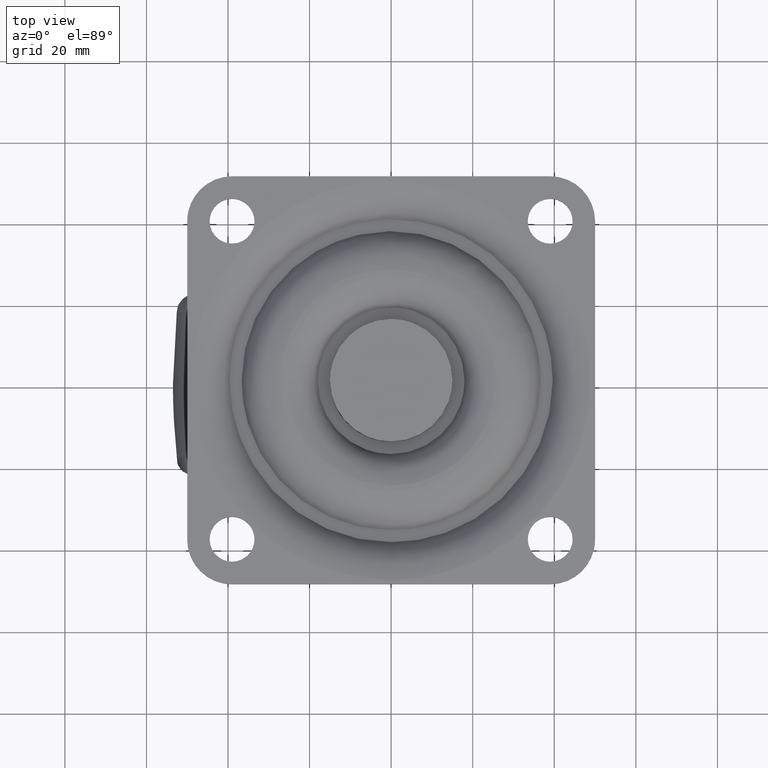
[diagram: clean part render]
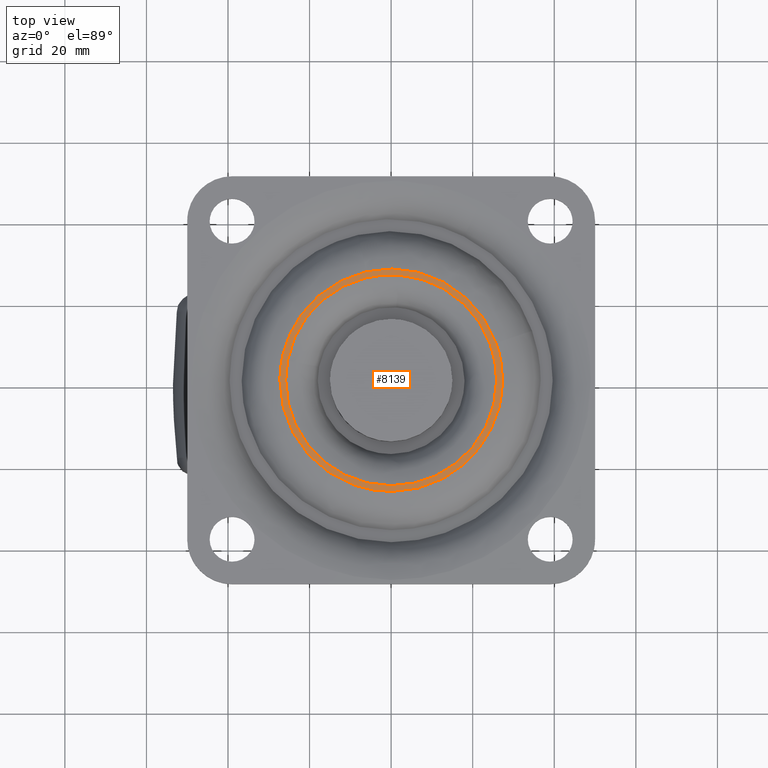
[diagram: same view with one face highlighted and labeled with its STEP entity id]
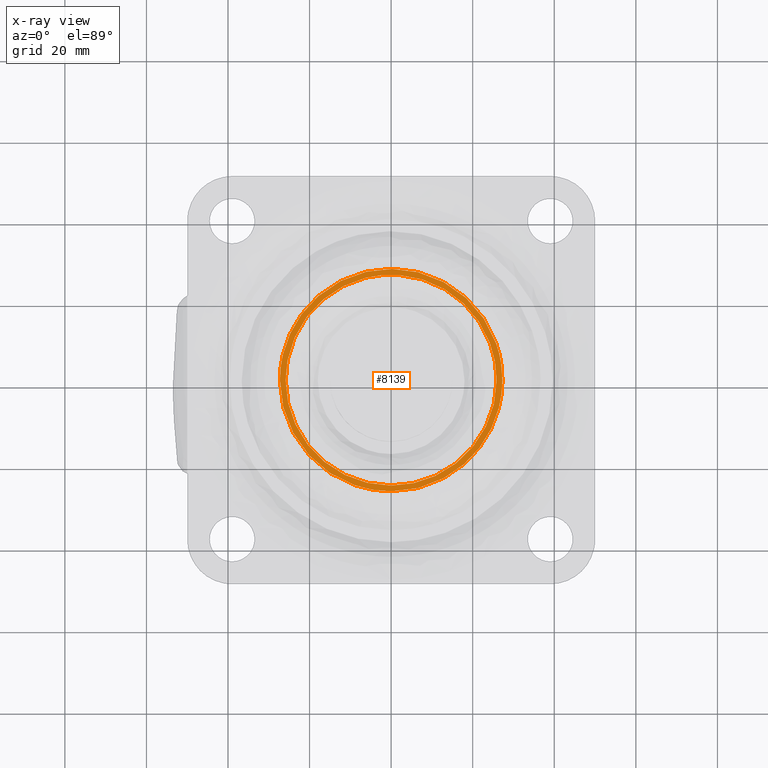
[diagram: x-ray of the same camera — body ghosted, the highlighted face saturated]
A machine part, top view. The second image highlights one B-rep face of the part: STEP entity #8139.
The next image is the same camera in x-ray: the body ghosted, the highlighted face saturated — about 0% of this face is hidden behind the body in this view.
In plain terms, the highlighted face is a freeform B-spline surface patch.
Its self-contained STEP definition (entity closure, byte-faithful):
#7069=CARTESIAN_POINT('',(-25.400098982817980,4.845327922967750,-1.243973E-015));
#7070=VERTEX_POINT('',#7069);
#7084=CARTESIAN_POINT('',(-25.858117322750850,0.0,0.0));
#7085=VERTEX_POINT('',#7084);
#7086=CARTESIAN_POINT('',(-25.858117322750850,0.0,0.0));
#7087=CARTESIAN_POINT('',(-25.858201084295288,1.624719688980686,2.274955E-019));
#7088=CARTESIAN_POINT('',(-25.704679126419350,3.249407901081459,-4.167365E-016));
#7089=CARTESIAN_POINT('',(-25.400098982817980,4.845327922967750,-1.243973E-015));
#7090=B_SPLINE_CURVE_WITH_KNOTS('',3,(#7086,#7087,#7088,#7089),.UNSPECIFIED.,.F.,.U.,(4,4),(9.122507E-010,4.874147237430577),.UNSPECIFIED.);
#7091=EDGE_CURVE('',#7085,#7070,#7090,.T.);
#7093=CARTESIAN_POINT('',(-0.000002148810196,-25.858116822750802,0.0));
#7094=VERTEX_POINT('',#7093);
#7095=CARTESIAN_POINT('',(-0.000002148810196,-25.858116822750802,0.0));
#7096=CARTESIAN_POINT('',(-1.798211317879556,-25.858425318687999,0.0));
#7097=CARTESIAN_POINT('',(-4.759791574796266,-25.547843667341400,0.0));
#7098=CARTESIAN_POINT('',(-8.686834166784946,-24.435062399273331,0.0));
#7099=CARTESIAN_POINT('',(-12.043484420835121,-22.984016498825120,0.0));
#7100=CARTESIAN_POINT('',(-14.979508253382280,-21.174890472137271,0.0));
#7101=CARTESIAN_POINT('',(-17.968537644953770,-18.721888261588159,0.0));
#7102=CARTESIAN_POINT('',(-20.437246285888289,-16.014861674558659,0.0));
#7103=CARTESIAN_POINT('',(-22.625623042078590,-12.695697035323130,0.0));
#7104=CARTESIAN_POINT('',(-24.031372769388291,-9.723415541780781,0.0));
#7105=CARTESIAN_POINT('',(-25.094429569526550,-6.505545773563933,0.0));
#7106=CARTESIAN_POINT('',(-25.715184684906479,-3.384817157196768,0.0));
#7107=CARTESIAN_POINT('',(-25.858137575765859,-1.057752724912447,0.0));
#7108=CARTESIAN_POINT('',(-25.858117322750850,0.0,0.0));
#7109=B_SPLINE_CURVE_WITH_KNOTS('',3,(#7095,#7096,#7097,#7098,#7099,#7100,#7101,#7102,#7103,#7104,#7105,#7106,#7107,#7108),.UNSPECIFIED.,.F.,.U.,(4,1,1,1,1,1,1,1,1,1,1,4),(0.000000065593696,5.394549439185973,8.885161983043108,12.217112870780831,16.342388060420081,19.198310688530540,23.799519605514110,27.290134279184240,31.098080509746151,33.636712321058177,37.444630518089163,40.617897711306703),.UNSPECIFIED.);
#7110=EDGE_CURVE('',#7094,#7085,#7109,.T.);
#7112=CARTESIAN_POINT('',(25.858116322750849,0.0,0.0));
#7113=VERTEX_POINT('',#7112);
#7114=CARTESIAN_POINT('',(25.858116322750849,0.0,0.0));
#7115=CARTESIAN_POINT('',(25.858506939196189,-2.009776261509606,0.0));
#7116=CARTESIAN_POINT('',(25.517318873986060,-4.918408411899305,0.0));
#7117=CARTESIAN_POINT('',(24.488493565173322,-8.424850472638996,0.0));
#7118=CARTESIAN_POINT('',(23.309279776363919,-11.374045496096770,0.0));
#7119=CARTESIAN_POINT('',(21.721455434004021,-14.197073688791029,0.0));
#7120=CARTESIAN_POINT('',(19.522848551337791,-17.050071555525701,0.0));
#7121=CARTESIAN_POINT('',(17.443661851383151,-19.167893302721620,0.0));
#7122=CARTESIAN_POINT('',(14.968920330500341,-21.161041693656390,0.0));
#7123=CARTESIAN_POINT('',(12.361388205406140,-22.789940367835690,0.0));
#7124=CARTESIAN_POINT('',(9.619790954468272,-24.055823710681601,0.0));
#7125=CARTESIAN_POINT('',(7.010620381257001,-24.935565276327189,0.0));
#7126=CARTESIAN_POINT('',(3.860758214782175,-25.653094050802061,0.0));
#7127=CARTESIAN_POINT('',(1.480856152208026,-25.858238999123660,0.0));
#7128=CARTESIAN_POINT('',(-0.000002148810196,-25.858116822750802,0.0));
#7129=B_SPLINE_CURVE_WITH_KNOTS('',3,(#7114,#7115,#7116,#7117,#7118,#7119,#7120,#7121,#7122,#7123,#7124,#7125,#7126,#7127,#7128),.UNSPECIFIED.,.F.,.U.,(4,1,1,1,1,1,1,1,1,1,1,1,4),(0.000000065448653,6.029212602821083,8.726495215954476,10.947795053516490,15.549040815393671,18.405025755352771,21.736885995648620,24.434194739507550,27.924799946758920,30.939416133351369,33.478039628080609,36.175345606647937,40.617899569902953),.UNSPECIFIED.);
#7130=EDGE_CURVE('',#7113,#7094,#7129,.T.);
#7132=CARTESIAN_POINT('',(1.880117323746604,25.789675502626039,-1.170020E-015));
#7133=VERTEX_POINT('',#7132);
#7134=CARTESIAN_POINT('',(1.880117323746604,25.789675502626039,-1.170020E-015));
#7135=CARTESIAN_POINT('',(3.590491210032199,25.665236229273319,-1.086561E-015));
#7136=CARTESIAN_POINT('',(6.386880981081955,25.178285010240181,-9.501098E-016));
#7137=CARTESIAN_POINT('',(10.538083323755840,23.728150604401449,-7.475496E-016));
#7138=CARTESIAN_POINT('',(13.842789075325671,21.960516790227668,-5.862946E-016));
#7139=CARTESIAN_POINT('',(16.551671474180051,19.929468230852660,-4.541132E-016));
#7140=CARTESIAN_POINT('',(18.622939528838749,18.005147317638020,-3.530445E-016));
#7141=CARTESIAN_POINT('',(20.554673151606771,15.801621036382180,-2.587845E-016));
#7142=CARTESIAN_POINT('',(22.421841735977491,13.036605626133881,-1.676749E-016));
#7143=CARTESIAN_POINT('',(23.968368720664149,9.910101261904780,-9.221129E-017));
#7144=CARTESIAN_POINT('',(24.984548794271369,6.891802284346162,-4.262622E-017));
#7145=CARTESIAN_POINT('',(25.682372126508628,3.581038183536501,-8.575536E-018));
#7146=CARTESIAN_POINT('',(25.858211412079331,1.361817555695374,4.639937E-021));
#7147=CARTESIAN_POINT('',(25.858116322750849,0.0,0.0));
#7148=B_SPLINE_CURVE_WITH_KNOTS('',3,(#7134,#7135,#7136,#7137,#7138,#7139,#7140,#7141,#7142,#7143,#7144,#7145,#7146,#7147),.UNSPECIFIED.,.F.,.U.,(4,1,1,1,1,1,1,1,1,1,1,4),(0.000000060213921,5.144630240536436,8.473519642187242,13.164241030772541,16.341829351366250,18.611531384101681,21.637749632728461,25.117939967540391,28.598144650649569,32.078343662313969,34.650672183128968,38.736111839524817),.UNSPECIFIED.);
#7149=EDGE_CURVE('',#7133,#7113,#7148,.T.);
#7199=CARTESIAN_POINT('',(-25.400098982817980,4.845327922967750,-1.243973E-015));
#7200=CARTESIAN_POINT('',(-25.051556313621109,6.674118897870211,-1.068800E-015));
#7201=CARTESIAN_POINT('',(-24.230465022307509,9.360207604674834,-8.371607E-016));
#7202=CARTESIAN_POINT('',(-22.558306238371220,12.747862487178780,-5.978394E-016));
#7203=CARTESIAN_POINT('',(-20.812540363398181,15.475743390968359,-4.382553E-016));
#7204=CARTESIAN_POINT('',(-18.335131288143089,18.399978101751980,-3.174621E-016));
#7205=CARTESIAN_POINT('',(-15.071015054575749,21.166552941200869,-2.795360E-016));
#7206=CARTESIAN_POINT('',(-11.047752870147381,23.537758158268229,-3.487182E-016));
#7207=CARTESIAN_POINT('',(-6.793875712544309,25.093883669991548,-5.279965E-016));
#7208=CARTESIAN_POINT('',(-2.338732113151684,25.865876758261930,-8.114819E-016));
#7209=CARTESIAN_POINT('',(0.463134837040516,25.893080058345181,-1.040914E-015));
#7210=CARTESIAN_POINT('',(1.880117323746604,25.789675502626039,-1.170020E-015));
#7211=B_SPLINE_CURVE_WITH_KNOTS('',3,(#7199,#7200,#7201,#7202,#7203,#7204,#7205,#7206,#7207,#7208,#7209,#7210),.UNSPECIFIED.,.F.,.U.,(4,1,1,1,1,1,1,1,1,4),(0.000000057971327,5.585037371145514,8.377557679936231,11.317062074690400,15.285397783553559,19.841543359152070,24.103846094274012,29.247967886888141,33.363283686801452,37.625523727834832),.UNSPECIFIED.);
#7212=EDGE_CURVE('',#7070,#7133,#7211,.T.);
#7516=CARTESIAN_POINT('',(-6.047745811863400,26.598627182407029,-1.539344E-015));
#7517=VERTEX_POINT('',#7516);
#7518=CARTESIAN_POINT('',(-27.277503502402400,0.0,0.0));
#7519=VERTEX_POINT('',#7518);
#7520=CARTESIAN_POINT('',(-6.047745811863400,26.598627182407029,-1.539344E-015));
#7521=CARTESIAN_POINT('',(-7.680878104883483,26.227489042994559,-1.420928E-015));
#7522=CARTESIAN_POINT('',(-10.147436823454459,25.421637939422769,-1.242080E-015));
#7523=CARTESIAN_POINT('',(-13.198810130011889,23.918259977122251,-1.020829E-015));
#7524=CARTESIAN_POINT('',(-16.052955979257760,22.158801295603720,-8.138783E-016));
#7525=CARTESIAN_POINT('',(-18.876605154882689,19.844059355611201,-6.091389E-016));
#7526=CARTESIAN_POINT('',(-21.271896470905059,17.161191611688970,-4.354593E-016));
#7527=CARTESIAN_POINT('',(-22.971670814217561,14.785146644405909,-3.122107E-016));
#7528=CARTESIAN_POINT('',(-24.728919991495822,11.760626061138320,-1.847947E-016));
#7529=CARTESIAN_POINT('',(-26.177533443940039,8.094108621381031,-7.975749E-017));
#7530=CARTESIAN_POINT('',(-27.090256080576939,3.875840693336861,-1.357708E-017));
#7531=CARTESIAN_POINT('',(-27.277567572262889,1.339809432935901,4.645628E-021));
#7532=CARTESIAN_POINT('',(-27.277503502402400,0.0,0.0));
#7533=B_SPLINE_CURVE_WITH_KNOTS('',3,(#7520,#7521,#7522,#7523,#7524,#7525,#7526,#7527,#7528,#7529,#7530,#7531,#7532),.UNSPECIFIED.,.F.,.U.,(4,1,1,1,1,1,1,1,1,1,4),(0.000000047887902,5.024277695300537,7.751740326886552,10.192116600974099,15.072842796131290,18.661584115403901,20.958421275363811,23.829442833849971,29.140828173021308,32.729599840593117,36.749022407743247),.UNSPECIFIED.);
#7534=EDGE_CURVE('',#7517,#7519,#7533,.T.);
#7621=CARTESIAN_POINT('',(25.722427647083979,9.078486292279923,-1.472977E-015));
#7622=VERTEX_POINT('',#7621);
#7635=CARTESIAN_POINT('',(27.277503502402400,0.0,0.0));
#7636=VERTEX_POINT('',#7635);
#7637=CARTESIAN_POINT('',(27.277503502402400,0.0,0.0));
#7638=CARTESIAN_POINT('',(27.277536146395470,1.205083581552374,3.092058E-020));
#7639=CARTESIAN_POINT('',(27.072776998115462,4.290100816529897,-1.939181E-016));
#7640=CARTESIAN_POINT('',(26.348418668289270,7.305809099893434,-8.800345E-016));
#7641=CARTESIAN_POINT('',(25.722427647083979,9.078486292279923,-1.472977E-015));
#7642=B_SPLINE_CURVE_WITH_KNOTS('',3,(#7637,#7638,#7639,#7640,#7641),.UNSPECIFIED.,.F.,.U.,(4,1,4),(2.907237E-009,3.615259229831285,9.255049736571774),.UNSPECIFIED.);
#7643=EDGE_CURVE('',#7636,#7622,#7642,.T.);
#7645=CARTESIAN_POINT('',(0.000001600492947,-27.277503502402361,0.0));
#7646=VERTEX_POINT('',#7645);
#7647=CARTESIAN_POINT('',(0.000001600492947,-27.277503502402361,0.0));
#7648=CARTESIAN_POINT('',(1.785328599398316,-27.277765253935819,0.0));
#7649=CARTESIAN_POINT('',(4.295806602036880,-27.030097678105822,0.0));
#7650=CARTESIAN_POINT('',(7.932866503990637,-26.154506469771391,0.0));
#7651=CARTESIAN_POINT('',(11.407838175299011,-24.911394246110721,0.0));
#7652=CARTESIAN_POINT('',(15.181987134437160,-22.818977395797418,0.0));
#7653=CARTESIAN_POINT('',(18.326568127617310,-20.301992064146791,0.0));
#7654=CARTESIAN_POINT('',(20.971326854987321,-17.574875017765379,0.0));
#7655=CARTESIAN_POINT('',(23.329373055025190,-14.375145740516430,0.0));
#7656=CARTESIAN_POINT('',(25.253901742258979,-10.580603688079290,0.0));
#7657=CARTESIAN_POINT('',(26.341340683863262,-7.288632627889756,0.0));
#7658=CARTESIAN_POINT('',(27.080420297087169,-3.849521217654023,0.0));
#7659=CARTESIAN_POINT('',(27.277660074534548,-1.562156069844526,0.0));
#7660=CARTESIAN_POINT('',(27.277503502402400,0.0,0.0));
#7661=B_SPLINE_CURVE_WITH_KNOTS('',3,(#7647,#7648,#7649,#7650,#7651,#7652,#7653,#7654,#7655,#7656,#7657,#7658,#7659,#7660),.UNSPECIFIED.,.F.,.U.,(4,1,1,1,1,1,1,1,1,1,1,4),(0.000000064080076,5.355909443330724,7.531766532053766,11.213987237723160,16.402573340433040,20.419536518575860,23.264819524937860,27.783898577558858,32.302974980909482,35.985179725219162,38.161036483770232,42.847468618781342),.UNSPECIFIED.);
#7662=EDGE_CURVE('',#7646,#7636,#7661,.T.);
#7664=CARTESIAN_POINT('',(-27.277503502402400,0.0,0.0));
#7665=CARTESIAN_POINT('',(-27.277551237141669,-1.227390707301140,0.0));
#7666=CARTESIAN_POINT('',(-27.115299886605069,-3.626379846918916,0.0));
#7667=CARTESIAN_POINT('',(-26.306966458357788,-7.626738182007187,0.0));
#7668=CARTESIAN_POINT('',(-24.784387795028330,-11.723082392237099,0.0));
#7669=CARTESIAN_POINT('',(-22.488916439919830,-15.633780162003870,0.0));
#7670=CARTESIAN_POINT('',(-19.969138489279079,-18.704060216080912,0.0));
#7671=CARTESIAN_POINT('',(-17.430059285923122,-21.062687434556270,0.0));
#7672=CARTESIAN_POINT('',(-14.679980772606770,-23.076251796106479,0.0));
#7673=CARTESIAN_POINT('',(-11.158115224762700,-25.028993485423928,0.0));
#7674=CARTESIAN_POINT('',(-7.671671607216789,-26.264407635181719,0.0));
#7675=CARTESIAN_POINT('',(-3.793723254905922,-27.085236648180739,0.0));
#7676=CARTESIAN_POINT('',(-1.562152626123372,-27.277643210159152,0.0));
#7677=CARTESIAN_POINT('',(0.000001600492947,-27.277503502402361,0.0));
#7678=B_SPLINE_CURVE_WITH_KNOTS('',3,(#7664,#7665,#7666,#7667,#7668,#7669,#7670,#7671,#7672,#7673,#7674,#7675,#7676,#7677),.UNSPECIFIED.,.F.,.U.,(4,1,1,1,1,1,1,1,1,1,1,4),(0.000000063949365,3.682171248763233,7.197029268340785,12.218226226254220,16.737294385670751,20.754261286164009,24.101664560120749,27.114404556836590,30.963989587754050,36.152570039355282,38.161038090211647,42.847470422912700),.UNSPECIFIED.);
#7679=EDGE_CURVE('',#7519,#7646,#7678,.T.);
#7707=CARTESIAN_POINT('',(25.722427647083979,9.078486292279923,-1.472977E-015));
#7708=CARTESIAN_POINT('',(25.034739000253332,11.028014460957159,-1.228920E-015));
#7709=CARTESIAN_POINT('',(23.645690665040998,13.880677268372430,-9.056021E-016));
#7710=CARTESIAN_POINT('',(21.247974851203939,17.194258805371721,-5.992945E-016));
#7711=CARTESIAN_POINT('',(19.160923666523789,19.493093140238351,-4.241961E-016));
#7712=CARTESIAN_POINT('',(16.986573699118878,21.410920706749010,-3.163716E-016));
#7713=CARTESIAN_POINT('',(14.408316756012630,23.231421999158830,-2.594290E-016));
#7714=CARTESIAN_POINT('',(11.728374246651811,24.699403336395282,-2.665771E-016));
#7715=CARTESIAN_POINT('',(8.798537962412498,25.875594562970239,-3.414090E-016));
#7716=CARTESIAN_POINT('',(6.107786062580315,26.631197493160251,-4.608823E-016));
#7717=CARTESIAN_POINT('',(2.999809546952125,27.178535037446970,-6.497571E-016));
#7718=CARTESIAN_POINT('',(-1.036204504062559,27.400544908650431,-9.714410E-016));
#7719=CARTESIAN_POINT('',(-4.233593282660352,27.011408268650381,-1.314616E-015));
#7720=CARTESIAN_POINT('',(-6.047745811863400,26.598627182407029,-1.539344E-015));
#7721=B_SPLINE_CURVE_WITH_KNOTS('',3,(#7707,#7708,#7709,#7710,#7711,#7712,#7713,#7714,#7715,#7716,#7717,#7718,#7719,#7720),.UNSPECIFIED.,.F.,.U.,(4,1,1,1,1,1,1,1,1,1,1,4),(0.000000057081721,6.201689998160681,9.457580688614467,12.248347320634499,15.504259517034880,18.139984462790569,21.705914758246251,24.651712236739591,27.597525828472531,30.078214954545249,34.109336234734393,39.690839140454628),.UNSPECIFIED.);
#7722=EDGE_CURVE('',#7622,#7517,#7721,.T.);
#8120=CARTESIAN_POINT('',(-30.002526508677590,29.997376121823802,0.0));
#8121=CARTESIAN_POINT('',(30.002527484197142,29.997376121823802,0.0));
#8122=CARTESIAN_POINT('',(-30.002526508677590,-30.002282461259401,0.0));
#8123=CARTESIAN_POINT('',(30.002527484197142,-30.002282461259401,0.0));
#8124=B_SPLINE_SURFACE_WITH_KNOTS('',1,1,((#8120,#8122),(#8121,#8123)),.UNSPECIFIED.,.F.,.F.,.U.,(2,2),(2,2),(0.0,60.005053992874721),(0.0,59.999658583083203),.UNSPECIFIED.);
#8125=ORIENTED_EDGE('',*,*,#7662,.T.);
#8126=ORIENTED_EDGE('',*,*,#7643,.T.);
#8127=ORIENTED_EDGE('',*,*,#7722,.T.);
#8128=ORIENTED_EDGE('',*,*,#7534,.T.);
#8129=ORIENTED_EDGE('',*,*,#7679,.T.);
#8130=EDGE_LOOP('',(#8125,#8126,#8127,#8128,#8129));
#8131=FACE_OUTER_BOUND('',#8130,.T.);
#8132=ORIENTED_EDGE('',*,*,#7091,.T.);
#8133=ORIENTED_EDGE('',*,*,#7212,.T.);
#8134=ORIENTED_EDGE('',*,*,#7149,.T.);
#8135=ORIENTED_EDGE('',*,*,#7130,.T.);
#8136=ORIENTED_EDGE('',*,*,#7110,.T.);
#8137=EDGE_LOOP('',(#8132,#8133,#8134,#8135,#8136));
#8138=FACE_BOUND('',#8137,.T.);
#8139=ADVANCED_FACE('',(#8131,#8138),#8124,.F.);